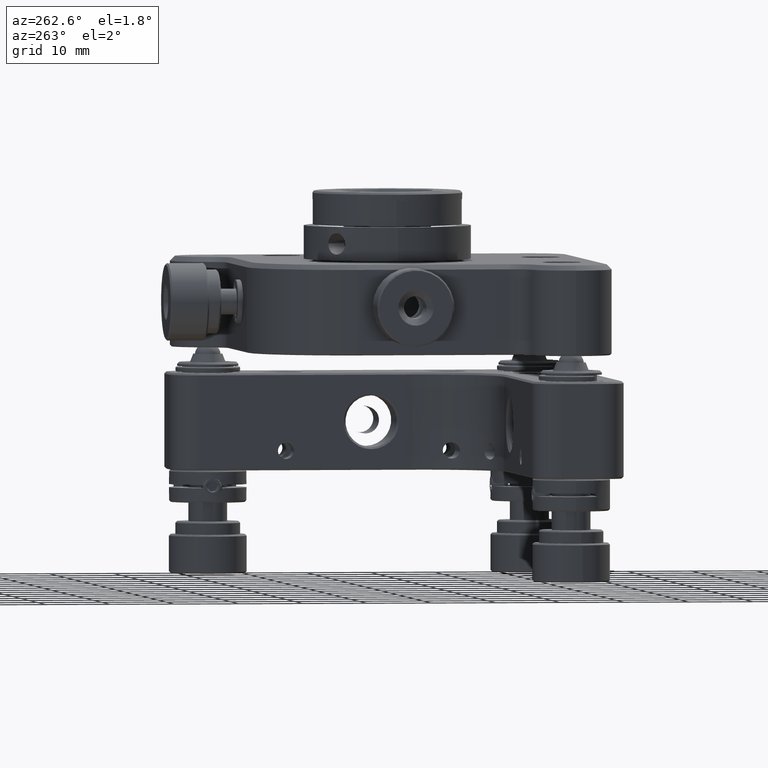
[diagram: clean part render]
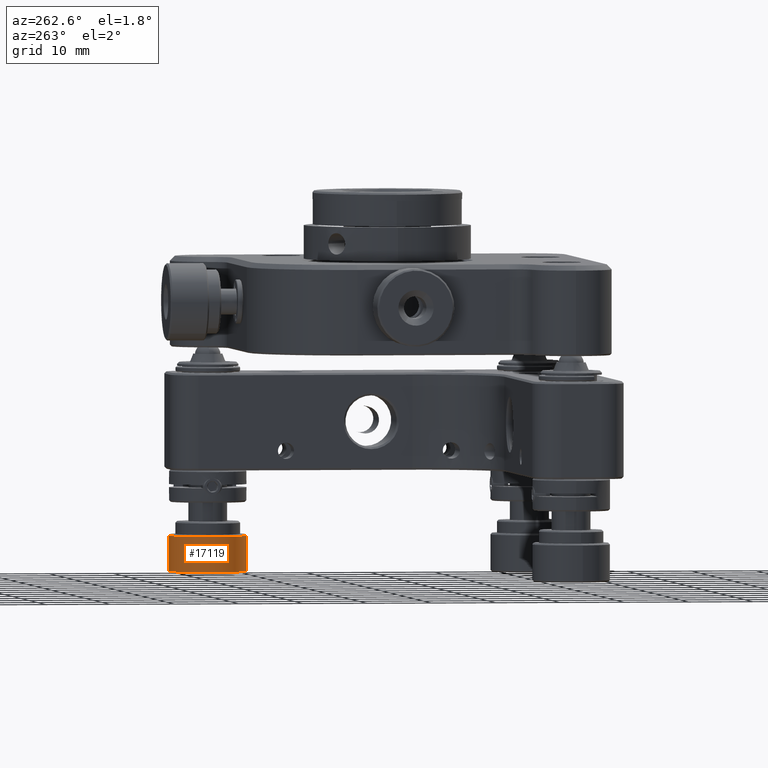
[diagram: same view with one face highlighted and labeled with its STEP entity id]
A machine part, auxiliary view. The second image highlights one B-rep face of the part: STEP entity #17119.
In plain terms, the highlighted cylindrical surface (partial cylindrical patch) has radius 6 mm, axis along (-0, -0, -1).
Its self-contained STEP definition (entity closure, byte-faithful):
#330 = CARTESIAN_POINT ( 'NONE',  ( 27.93999999999999417, 22.09799999999997056, -34.75616774132264908 ) ) ;
#567 = EDGE_CURVE ( 'NONE', #733, #8205, #18203, .T. ) ;
#733 = VERTEX_POINT ( 'NONE', #16983 ) ;
#1244 = VECTOR ( 'NONE', #3065, 1000.000000000000000 ) ;
#1430 = ORIENTED_EDGE ( 'NONE', *, *, #13197, .F. ) ;
#1783 = DIRECTION ( 'NONE',  ( -4.760512959350115907E-17, -3.557413647197743349E-17, -1.000000000000000000 ) ) ;
#1923 = VERTEX_POINT ( 'NONE', #21855 ) ;
#3065 = DIRECTION ( 'NONE',  ( -4.760512959350115907E-17, -3.557413647197743349E-17, -1.000000000000000000 ) ) ;
#3124 = DIRECTION ( 'NONE',  ( -0.1779058340823218565, -0.9840475162305289958, 0.0000000000000000000 ) ) ;
#3329 = DIRECTION ( 'NONE',  ( 0.1779058340823218565, 0.9840475162305289958, 0.0000000000000000000 ) ) ;
#6343 = DIRECTION ( 'NONE',  ( -4.760512959350115907E-17, -3.557413647197743349E-17, -1.000000000000000000 ) ) ;
#6497 = EDGE_CURVE ( 'NONE', #8205, #12950, #18368, .T. ) ;
#7098 = ORIENTED_EDGE ( 'NONE', *, *, #6497, .T. ) ;
#7110 = ORIENTED_EDGE ( 'NONE', *, *, #18860, .T. ) ;
#7631 = DIRECTION ( 'NONE',  ( 4.760512959350115907E-17, 3.557413647197743349E-17, 1.000000000000000000 ) ) ;
#8003 = CARTESIAN_POINT ( 'NONE',  ( 26.87256499550606037, 16.19371490261679369, -34.50616774132264908 ) ) ;
#8033 = ORIENTED_EDGE ( 'NONE', *, *, #567, .T. ) ;
#8205 = VERTEX_POINT ( 'NONE', #11710 ) ;
#8224 = DIRECTION ( 'NONE',  ( -4.760512959350115907E-17, -3.557413647197743349E-17, -1.000000000000000000 ) ) ;
#8480 = AXIS2_PLACEMENT_3D ( 'NONE', #18265, #6343, #3124 ) ;
#9608 = CARTESIAN_POINT ( 'NONE',  ( 27.93999999999999417, 22.09799999999997056, -40.25616774132264197 ) ) ;
#9903 = AXIS2_PLACEMENT_3D ( 'NONE', #9608, #7631, #12824 ) ;
#11315 = FACE_OUTER_BOUND ( 'NONE', #17049, .T. ) ;
#11710 = CARTESIAN_POINT ( 'NONE',  ( 29.00743500449392442, 28.00228509738314742, -40.25616774132264197 ) ) ;
#11729 = CIRCLE ( 'NONE', #16324, 6.000000000000002665 ) ;
#12824 = DIRECTION ( 'NONE',  ( 0.1779058340823218565, 0.9840475162305289958, 0.0000000000000000000 ) ) ;
#12950 = VERTEX_POINT ( 'NONE', #20081 ) ;
#12982 = LINE ( 'NONE', #8003, #18137 ) ;
#13197 = EDGE_CURVE ( 'NONE', #1923, #12950, #12982, .T. ) ;
#13298 = CYLINDRICAL_SURFACE ( 'NONE', #8480, 6.000000000000002665 ) ;
#16324 = AXIS2_PLACEMENT_3D ( 'NONE', #330, #1783, #3329 ) ;
#16541 = CARTESIAN_POINT ( 'NONE',  ( 29.00743500449392442, 28.00228509738314742, -34.50616774132264908 ) ) ;
#16983 = CARTESIAN_POINT ( 'NONE',  ( 29.00743500449392442, 28.00228509738314386, -34.75616774132264908 ) ) ;
#17049 = EDGE_LOOP ( 'NONE', ( #7110, #8033, #7098, #1430 ) ) ;
#17119 = ADVANCED_FACE ( 'NONE', ( #11315 ), #13298, .T. ) ;
#18137 = VECTOR ( 'NONE', #8224, 1000.000000000000000 ) ;
#18203 = LINE ( 'NONE', #16541, #1244 ) ;
#18265 = CARTESIAN_POINT ( 'NONE',  ( 27.93999999999999417, 22.09799999999997056, -34.50616774132264908 ) ) ;
#18368 = CIRCLE ( 'NONE', #9903, 6.000000000000002665 ) ;
#18860 = EDGE_CURVE ( 'NONE', #1923, #733, #11729, .T. ) ;
#20081 = CARTESIAN_POINT ( 'NONE',  ( 26.87256499550606037, 16.19371490261679369, -40.25616774132264197 ) ) ;
#21855 = CARTESIAN_POINT ( 'NONE',  ( 26.87256499550606037, 16.19371490261679725, -34.75616774132264908 ) ) ;